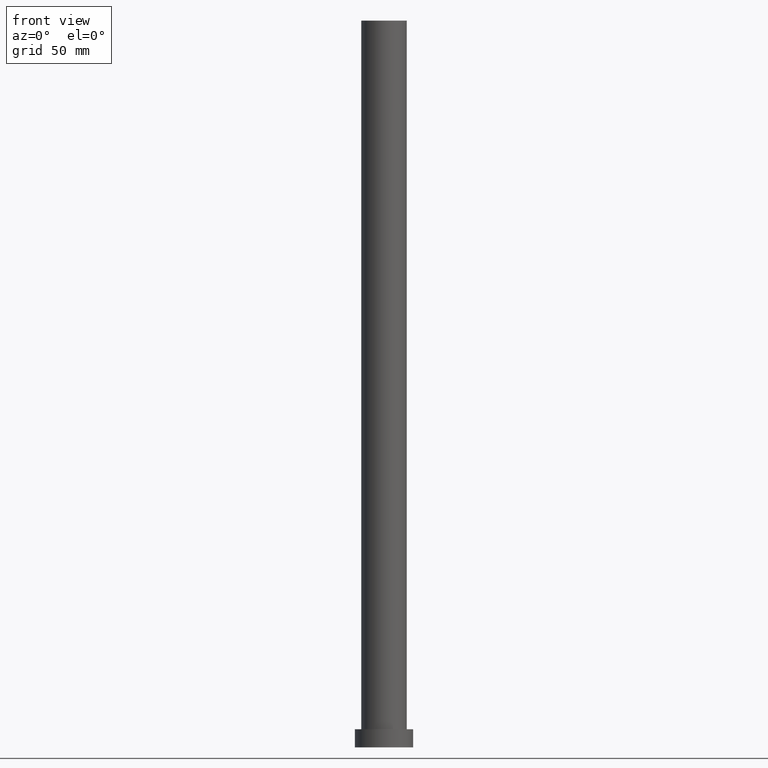
[diagram: clean part render]
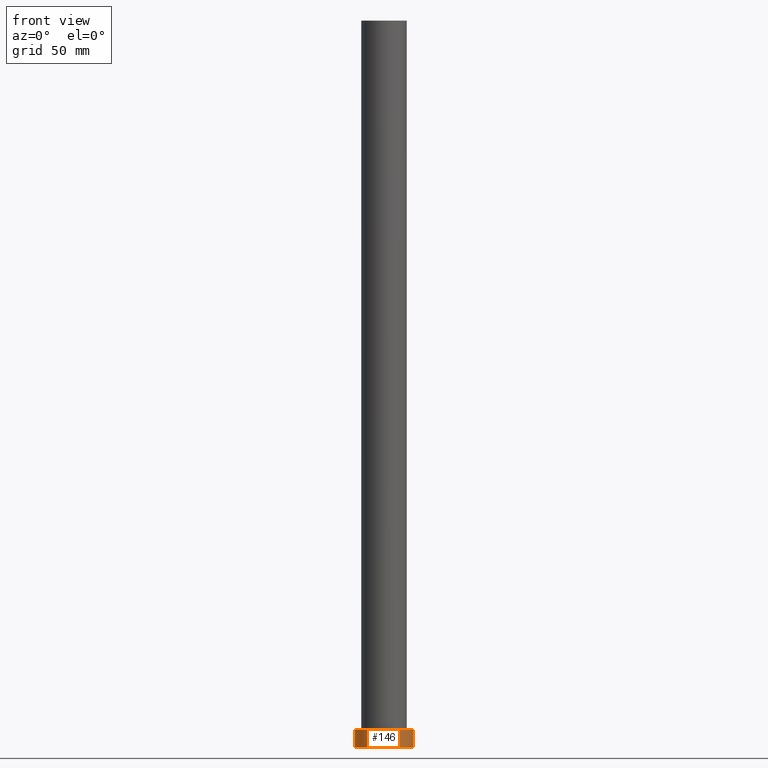
[diagram: same view with one face highlighted and labeled with its STEP entity id]
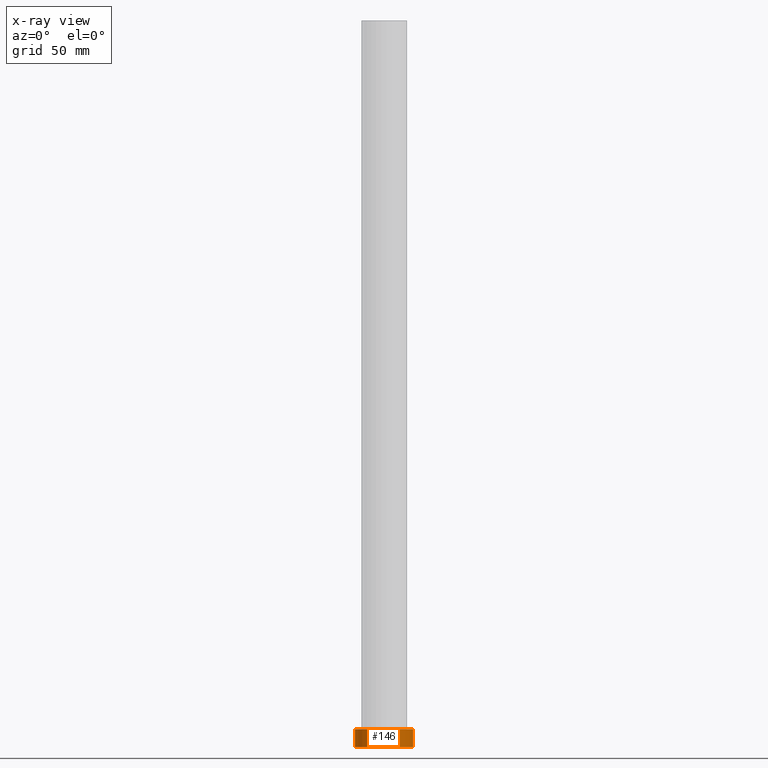
[diagram: x-ray of the same camera — body ghosted, the highlighted face saturated]
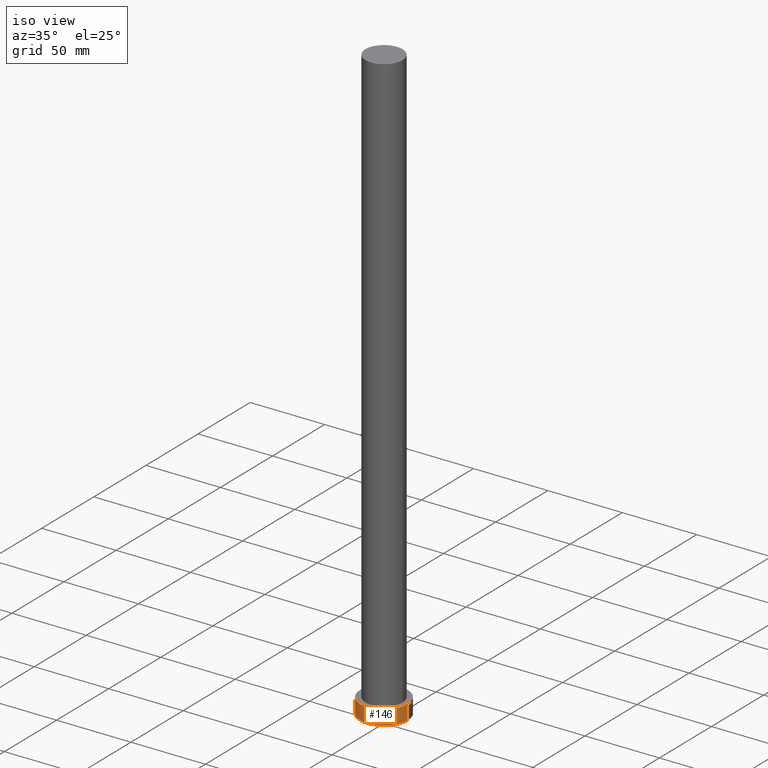
[diagram: same view with one face highlighted and labeled with its STEP entity id]
A machine part, front view. The second image highlights one B-rep face of the part: STEP entity #146.
The next image is the same camera in x-ray: the body ghosted, the highlighted face saturated — about 0% of this face is hidden behind the body in this view.
A second angle (iso view) of the same face is appended — the face is thin or edge-on in the first view.
In plain terms, the highlighted cylindrical surface (edge-blend (fillet) strip) has radius 16 mm, axis along (-0, -0, -1).
Its self-contained STEP definition (entity closure, byte-faithful):
#6 = CARTESIAN_POINT ( 'NONE',  ( -16.00000000000000000, 0.000000000000000000, 10.00000000000000000 ) ) ;
#11 = CARTESIAN_POINT ( 'NONE',  ( -16.00000000000000000, 0.000000000000000000, 0.000000000000000000 ) ) ;
#12 = CARTESIAN_POINT ( 'NONE',  ( 0.000000000000000000, 0.000000000000000000, 10.00000000000000000 ) ) ;
#13 = VERTEX_POINT ( 'NONE', #108 ) ;
#16 = CARTESIAN_POINT ( 'NONE',  ( 16.00000000000000000, 1.959434878635765131E-15, 0.000000000000000000 ) ) ;
#31 = EDGE_CURVE ( 'NONE', #13, #69, #90, .T. ) ;
#32 = DIRECTION ( 'NONE',  ( -0.000000000000000000, -0.000000000000000000, -1.000000000000000000 ) ) ;
#42 = VECTOR ( 'NONE', #164, 1000.000000000000000 ) ;
#44 = EDGE_LOOP ( 'NONE', ( #247, #150, #242, #221 ) ) ;
#45 = VERTEX_POINT ( 'NONE', #11 ) ;
#47 = VECTOR ( 'NONE', #208, 1000.000000000000000 ) ;
#65 = AXIS2_PLACEMENT_3D ( 'NONE', #12, #106, #226 ) ;
#69 = VERTEX_POINT ( 'NONE', #16 ) ;
#73 = CARTESIAN_POINT ( 'NONE',  ( 0.000000000000000000, 0.000000000000000000, 10.00000000000000000 ) ) ;
#77 = CARTESIAN_POINT ( 'NONE',  ( 0.000000000000000000, 0.000000000000000000, 0.000000000000000000 ) ) ;
#80 = DIRECTION ( 'NONE',  ( -1.000000000000000000, 0.000000000000000000, 0.000000000000000000 ) ) ;
#90 = LINE ( 'NONE', #155, #47 ) ;
#99 = CIRCLE ( 'NONE', #243, 16.00000000000000000 ) ;
#105 = EDGE_CURVE ( 'NONE', #45, #69, #99, .T. ) ;
#106 = DIRECTION ( 'NONE',  ( 0.000000000000000000, 0.000000000000000000, 1.000000000000000000 ) ) ;
#108 = CARTESIAN_POINT ( 'NONE',  ( 16.00000000000000000, 1.959434878635765131E-15, 10.00000000000000000 ) ) ;
#109 = CARTESIAN_POINT ( 'NONE',  ( -16.00000000000000000, 0.000000000000000000, 10.00000000000000000 ) ) ;
#110 = VERTEX_POINT ( 'NONE', #109 ) ;
#146 = ADVANCED_FACE ( 'NONE', ( #175 ), #156, .T. ) ;
#150 = ORIENTED_EDGE ( 'NONE', *, *, #189, .F. ) ;
#155 = CARTESIAN_POINT ( 'NONE',  ( 16.00000000000000000, 1.959434878635765131E-15, 10.00000000000000000 ) ) ;
#156 = CYLINDRICAL_SURFACE ( 'NONE', #172, 16.00000000000000000 ) ;
#164 = DIRECTION ( 'NONE',  ( -0.000000000000000000, -0.000000000000000000, -1.000000000000000000 ) ) ;
#172 = AXIS2_PLACEMENT_3D ( 'NONE', #73, #32, #80 ) ;
#175 = FACE_OUTER_BOUND ( 'NONE', #44, .T. ) ;
#189 = EDGE_CURVE ( 'NONE', #110, #13, #254, .T. ) ;
#208 = DIRECTION ( 'NONE',  ( -0.000000000000000000, -0.000000000000000000, -1.000000000000000000 ) ) ;
#221 = ORIENTED_EDGE ( 'NONE', *, *, #105, .T. ) ;
#226 = DIRECTION ( 'NONE',  ( 1.000000000000000000, 0.000000000000000000, 0.000000000000000000 ) ) ;
#230 = DIRECTION ( 'NONE',  ( 1.000000000000000000, 0.000000000000000000, 0.000000000000000000 ) ) ;
#237 = LINE ( 'NONE', #6, #42 ) ;
#242 = ORIENTED_EDGE ( 'NONE', *, *, #248, .T. ) ;
#243 = AXIS2_PLACEMENT_3D ( 'NONE', #77, #251, #230 ) ;
#247 = ORIENTED_EDGE ( 'NONE', *, *, #31, .F. ) ;
#248 = EDGE_CURVE ( 'NONE', #110, #45, #237, .T. ) ;
#251 = DIRECTION ( 'NONE',  ( 0.000000000000000000, 0.000000000000000000, 1.000000000000000000 ) ) ;
#254 = CIRCLE ( 'NONE', #65, 16.00000000000000000 ) ;